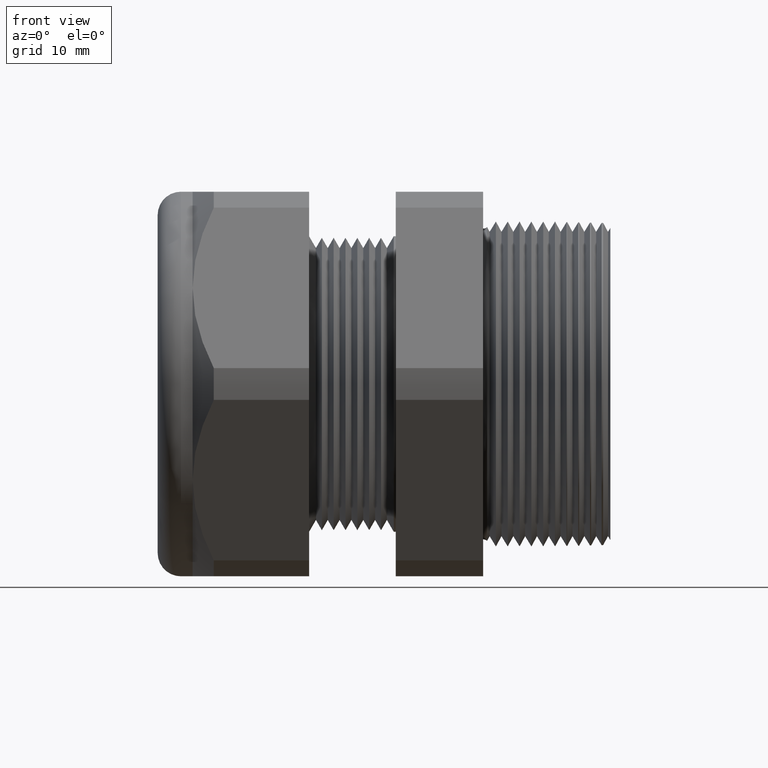
[diagram: clean part render]
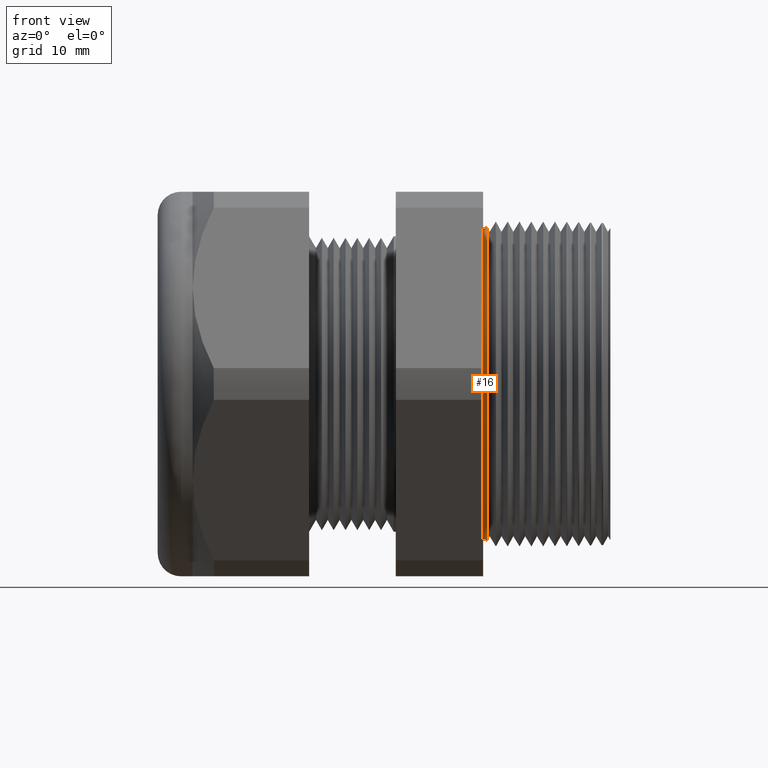
[diagram: same view with one face highlighted and labeled with its STEP entity id]
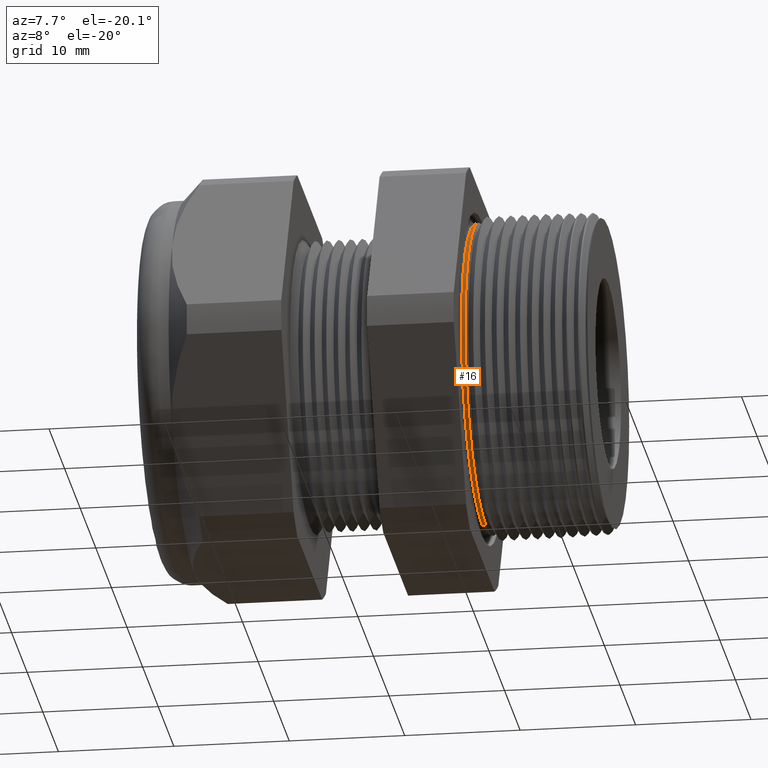
[diagram: same view with one face highlighted and labeled with its STEP entity id]
A machine part, front view. The second image highlights one B-rep face of the part: STEP entity #16.
A second angle (auxiliary view) of the same face is appended — the face is thin or edge-on in the first view.
In plain terms, the highlighted toroidal blend (fillet) surface has major radius 13.843 mm and minor (blend) radius 0.508 mm.
Its self-contained STEP definition (entity closure, byte-faithful):
#2 = ORIENTED_EDGE ( 'NONE', *, *, #21, .T. ) ;
#5 = EDGE_CURVE ( 'NONE', #20, #3694, #316, .T. ) ;
#6 = ORIENTED_EDGE ( 'NONE', *, *, #5, .T. ) ;
#13 = EDGE_LOOP ( 'NONE', ( #2, #6, #3460, #3489 ) ) ;
#14 = VERTEX_POINT ( 'NONE', #299 ) ;
#16 = ADVANCED_FACE ( 'NONE', ( #297 ), #295, .F. ) ;
#20 = VERTEX_POINT ( 'NONE', #348 ) ;
#21 = EDGE_CURVE ( 'NONE', #14, #20, #346, .T. ) ;
#292 = DIRECTION ( 'NONE',  ( 0.0000000000000000000, 0.0000000000000000000, -1.000000000000000000 ) ) ;
#293 = DIRECTION ( 'NONE',  ( 1.000000000000000000, 0.0000000000000000000, 0.0000000000000000000 ) ) ;
#294 = AXIS2_PLACEMENT_3D ( 'NONE', #296, #293, #292 ) ;
#295 = TOROIDAL_SURFACE ( 'NONE', #294, 0.5450000000000000400, 0.01999999999999999700 ) ;
#296 = CARTESIAN_POINT ( 'NONE',  ( -0.3100000000000000000, 0.0000000000000000000, 0.0000000000000000000 ) ) ;
#297 = FACE_OUTER_BOUND ( 'NONE', #13, .T. ) ;
#299 = CARTESIAN_POINT ( 'NONE',  ( -0.2965390502340899400, 0.0000000000000000000, 0.5302080146227879900 ) ) ;
#312 = DIRECTION ( 'NONE',  ( 0.0000000000000000000, 0.0000000000000000000, -1.000000000000000000 ) ) ;
#313 = DIRECTION ( 'NONE',  ( 1.000000000000000000, 0.0000000000000000000, 0.0000000000000000000 ) ) ;
#314 = CARTESIAN_POINT ( 'NONE',  ( -0.3100000000000000000, 0.0000000000000000000, 0.0000000000000000000 ) ) ;
#315 = AXIS2_PLACEMENT_3D ( 'NONE', #314, #313, #312 ) ;
#316 = CIRCLE ( 'NONE', #315, 0.5250000000000000200 ) ;
#342 = DIRECTION ( 'NONE',  ( 0.0000000000000000000, 1.224646799147351000E-016, 1.000000000000000000 ) ) ;
#343 = DIRECTION ( 'NONE',  ( 0.0000000000000000000, 1.000000000000000000, -1.224646799147353200E-016 ) ) ;
#344 = CARTESIAN_POINT ( 'NONE',  ( -0.3100000000000000000, 6.674325055353075000E-017, 0.5450000000000000400 ) ) ;
#345 = AXIS2_PLACEMENT_3D ( 'NONE', #344, #343, #342 ) ;
#346 = CIRCLE ( 'NONE', #345, 0.01999999999999999000 ) ;
#348 = CARTESIAN_POINT ( 'NONE',  ( -0.3100000000000000000, 6.429395695523606100E-017, 0.5250000000000000200 ) ) ;
#1917 = DIRECTION ( 'NONE',  ( 0.0000000000000000000, 0.0000000000000000000, 1.000000000000000000 ) ) ;
#1918 = DIRECTION ( 'NONE',  ( -1.000000000000000000, 0.0000000000000000000, 0.0000000000000000000 ) ) ;
#1919 = CARTESIAN_POINT ( 'NONE',  ( -0.2965390502340899400, 0.0000000000000000000, 0.0000000000000000000 ) ) ;
#1920 = AXIS2_PLACEMENT_3D ( 'NONE', #1919, #1918, #1917 ) ;
#1921 = CIRCLE ( 'NONE', #1920, 0.5302080146227879900 ) ;
#2288 = DIRECTION ( 'NONE',  ( 0.0000000000000000000, 0.0000000000000000000, -1.000000000000000000 ) ) ;
#2289 = DIRECTION ( 'NONE',  ( 0.0000000000000000000, -1.000000000000000000, 0.0000000000000000000 ) ) ;
#2290 = CARTESIAN_POINT ( 'NONE',  ( -0.3100000000000000000, 0.0000000000000000000, -0.5450000000000000400 ) ) ;
#2291 = AXIS2_PLACEMENT_3D ( 'NONE', #2290, #2289, #2288 ) ;
#2292 = CIRCLE ( 'NONE', #2291, 0.01999999999999999000 ) ;
#2302 = CARTESIAN_POINT ( 'NONE',  ( -0.2965390502340899400, 6.493175479900703600E-017, -0.5302080146227879900 ) ) ;
#2316 = CARTESIAN_POINT ( 'NONE',  ( -0.3100000000000000000, 0.0000000000000000000, -0.5250000000000000200 ) ) ;
#3460 = ORIENTED_EDGE ( 'NONE', *, *, #3708, .F. ) ;
#3489 = ORIENTED_EDGE ( 'NONE', *, *, #3516, .T. ) ;
#3516 = EDGE_CURVE ( 'NONE', #3701, #14, #1921, .T. ) ;
#3694 = VERTEX_POINT ( 'NONE', #2316 ) ;
#3701 = VERTEX_POINT ( 'NONE', #2302 ) ;
#3708 = EDGE_CURVE ( 'NONE', #3701, #3694, #2292, .T. ) ;